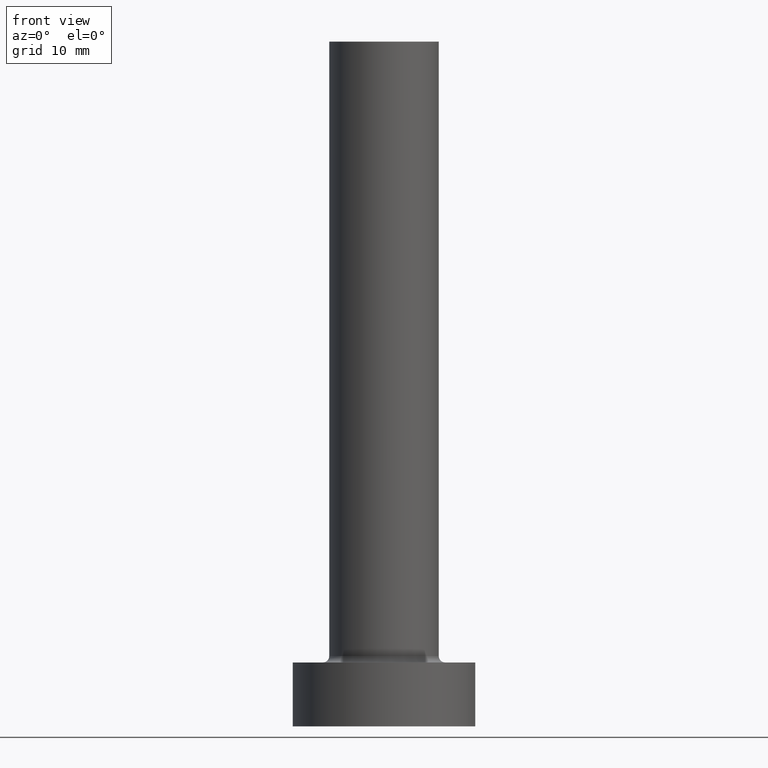
[diagram: clean part render]
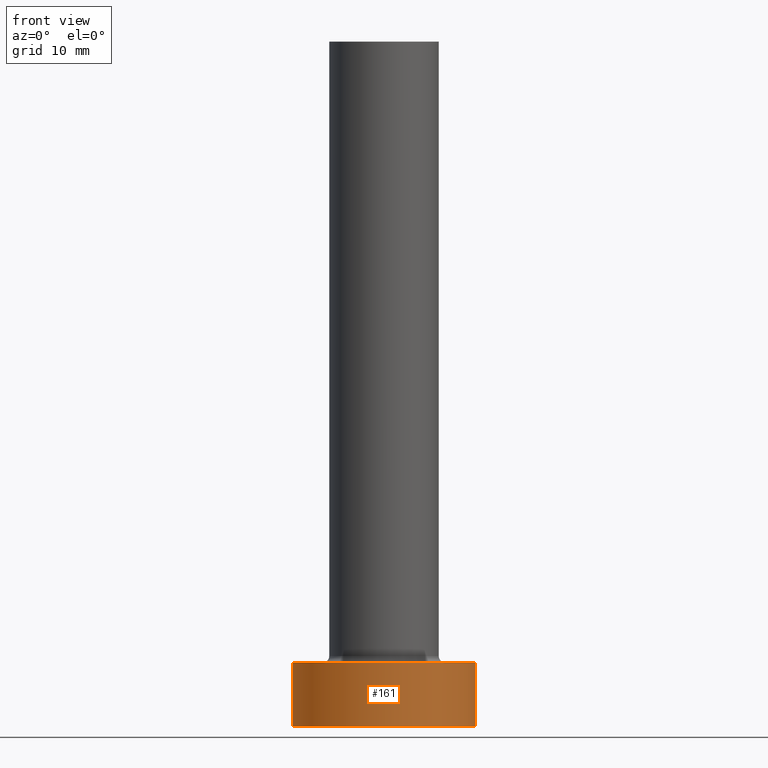
[diagram: same view with one face highlighted and labeled with its STEP entity id]
A machine part, front view. The second image highlights one B-rep face of the part: STEP entity #161.
In plain terms, the highlighted cylindrical surface (partial cylindrical patch) has radius 10 mm, axis along (-0, -0, -1).
Its self-contained STEP definition (entity closure, byte-faithful):
#5 = EDGE_LOOP ( 'NONE', ( #453, #105, #40, #360 ) ) ;
#27 = VERTEX_POINT ( 'NONE', #420 ) ;
#28 = CIRCLE ( 'NONE', #300, 10.00000000000000000 ) ;
#40 = ORIENTED_EDGE ( 'NONE', *, *, #210, .T. ) ;
#42 = DIRECTION ( 'NONE',  ( -0.000000000000000000, -0.000000000000000000, -1.000000000000000000 ) ) ;
#44 = DIRECTION ( 'NONE',  ( 0.000000000000000000, 0.000000000000000000, 1.000000000000000000 ) ) ;
#45 = DIRECTION ( 'NONE',  ( -1.000000000000000000, 0.000000000000000000, 0.000000000000000000 ) ) ;
#84 = LINE ( 'NONE', #401, #122 ) ;
#92 = CARTESIAN_POINT ( 'NONE',  ( 0.000000000000000000, 0.000000000000000000, 7.000000000000000000 ) ) ;
#105 = ORIENTED_EDGE ( 'NONE', *, *, #444, .F. ) ;
#114 = CARTESIAN_POINT ( 'NONE',  ( 10.00000000000000000, 1.224646799147353256E-15, 7.000000000000000000 ) ) ;
#116 = VERTEX_POINT ( 'NONE', #372 ) ;
#122 = VECTOR ( 'NONE', #304, 1000.000000000000000 ) ;
#125 = CARTESIAN_POINT ( 'NONE',  ( -10.00000000000000000, 0.000000000000000000, 7.000000000000000000 ) ) ;
#129 = LINE ( 'NONE', #125, #264 ) ;
#139 = CIRCLE ( 'NONE', #286, 10.00000000000000000 ) ;
#160 = EDGE_CURVE ( 'NONE', #368, #253, #84, .T. ) ;
#161 = ADVANCED_FACE ( 'NONE', ( #367 ), #404, .T. ) ;
#210 = EDGE_CURVE ( 'NONE', #27, #116, #129, .T. ) ;
#253 = VERTEX_POINT ( 'NONE', #390 ) ;
#264 = VECTOR ( 'NONE', #409, 1000.000000000000000 ) ;
#276 = DIRECTION ( 'NONE',  ( 1.000000000000000000, 0.000000000000000000, 0.000000000000000000 ) ) ;
#281 = DIRECTION ( 'NONE',  ( 0.000000000000000000, 0.000000000000000000, 1.000000000000000000 ) ) ;
#286 = AXIS2_PLACEMENT_3D ( 'NONE', #297, #44, #436 ) ;
#297 = CARTESIAN_POINT ( 'NONE',  ( 0.000000000000000000, 0.000000000000000000, 0.000000000000000000 ) ) ;
#300 = AXIS2_PLACEMENT_3D ( 'NONE', #317, #281, #276 ) ;
#304 = DIRECTION ( 'NONE',  ( -0.000000000000000000, -0.000000000000000000, -1.000000000000000000 ) ) ;
#316 = EDGE_CURVE ( 'NONE', #116, #253, #139, .T. ) ;
#317 = CARTESIAN_POINT ( 'NONE',  ( 0.000000000000000000, 0.000000000000000000, 7.000000000000000000 ) ) ;
#360 = ORIENTED_EDGE ( 'NONE', *, *, #316, .T. ) ;
#367 = FACE_OUTER_BOUND ( 'NONE', #5, .T. ) ;
#368 = VERTEX_POINT ( 'NONE', #114 ) ;
#372 = CARTESIAN_POINT ( 'NONE',  ( -10.00000000000000000, 0.000000000000000000, 0.000000000000000000 ) ) ;
#377 = AXIS2_PLACEMENT_3D ( 'NONE', #92, #42, #45 ) ;
#390 = CARTESIAN_POINT ( 'NONE',  ( 10.00000000000000000, 1.224646799147353256E-15, 0.000000000000000000 ) ) ;
#401 = CARTESIAN_POINT ( 'NONE',  ( 10.00000000000000000, 1.224646799147353256E-15, 7.000000000000000000 ) ) ;
#404 = CYLINDRICAL_SURFACE ( 'NONE', #377, 10.00000000000000000 ) ;
#409 = DIRECTION ( 'NONE',  ( -0.000000000000000000, -0.000000000000000000, -1.000000000000000000 ) ) ;
#420 = CARTESIAN_POINT ( 'NONE',  ( -10.00000000000000000, 0.000000000000000000, 7.000000000000000000 ) ) ;
#436 = DIRECTION ( 'NONE',  ( 1.000000000000000000, 0.000000000000000000, 0.000000000000000000 ) ) ;
#444 = EDGE_CURVE ( 'NONE', #27, #368, #28, .T. ) ;
#453 = ORIENTED_EDGE ( 'NONE', *, *, #160, .F. ) ;